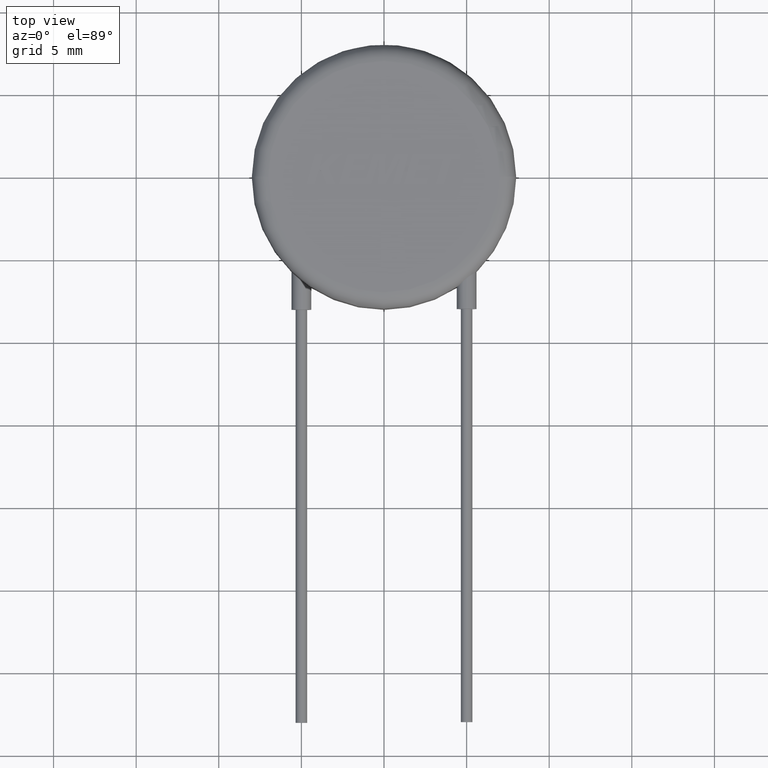
[diagram: clean part render]
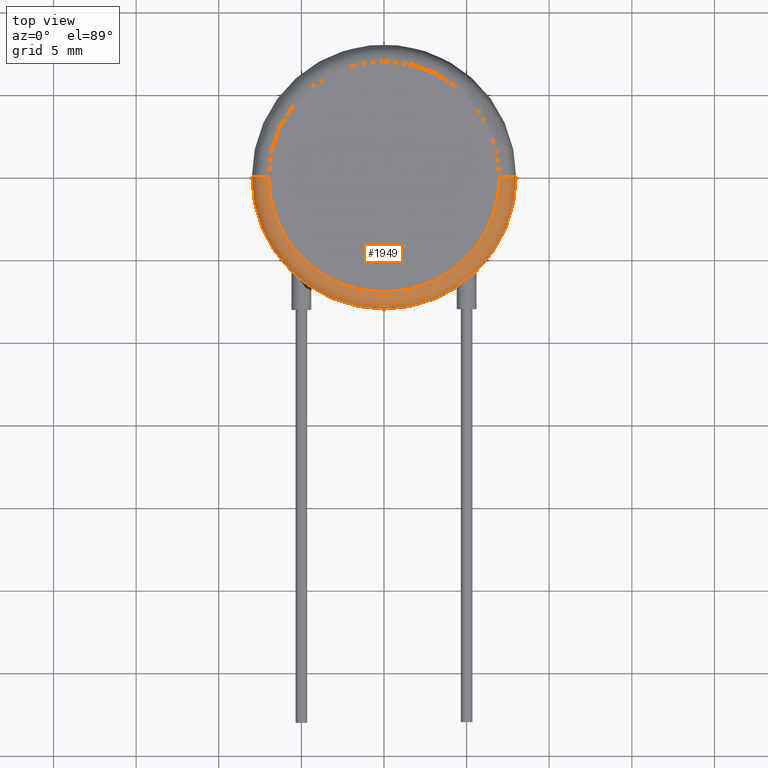
[diagram: same view with one face highlighted and labeled with its STEP entity id]
A machine part, top view. The second image highlights one B-rep face of the part: STEP entity #1949.
In plain terms, the highlighted toroidal blend (fillet) surface has major radius 7 mm and minor (blend) radius 1 mm.
Its self-contained STEP definition (entity closure, byte-faithful):
#33 = CARTESIAN_POINT ( 'NONE',  ( 0.000000000000000000, 0.000000000000000000, 5.000000000000000000 ) ) ;
#43 = CARTESIAN_POINT ( 'NONE',  ( 5.565685424949238680, -5.746576872409139725, 4.000000000000000000 ) ) ;
#53 = DIRECTION ( 'NONE',  ( 1.000000000000000000, 0.000000000000000000, 0.000000000000000000 ) ) ;
#117 = CARTESIAN_POINT ( 'NONE',  ( 4.495482335405950103, -6.608830326433365876, 4.131210232143875061 ) ) ;
#190 = CARTESIAN_POINT ( 'NONE',  ( -7.000000000000000000, 8.572527594031473190E-16, 4.000000000000000000 ) ) ;
#207 = VERTEX_POINT ( 'NONE', #3385 ) ;
#216 = CARTESIAN_POINT ( 'NONE',  ( 5.565685424949238680, -5.746576872409139725, 4.000000000000000000 ) ) ;
#335 = VERTEX_POINT ( 'NONE', #2404 ) ;
#348 = CARTESIAN_POINT ( 'NONE',  ( 5.520776025644094531, -5.790072608167232460, 4.127022963150730916 ) ) ;
#359 = AXIS2_PLACEMENT_3D ( 'NONE', #1395, #2479, #53 ) ;
#385 = CARTESIAN_POINT ( 'NONE',  ( 4.882508047927266226, -6.233401362512418942, 4.399999999999936406 ) ) ;
#413 = TOROIDAL_SURFACE ( 'NONE', #2047, 7.000000000000000000, 1.000000000000000000 ) ;
#487 = DIRECTION ( 'NONE',  ( 1.000000000000000000, 0.000000000000000000, 0.000000000000000000 ) ) ;
#574 = AXIS2_PLACEMENT_3D ( 'NONE', #33, #2461, #487 ) ;
#611 = ORIENTED_EDGE ( 'NONE', *, *, #1701, .T. ) ;
#623 = CARTESIAN_POINT ( 'NONE',  ( 4.999999999999650058, -6.137687833857293107, 4.400000000000003020 ) ) ;
#707 = EDGE_CURVE ( 'NONE', #2383, #1490, #1790, .T. ) ;
#736 = DIRECTION ( 'NONE',  ( -1.000000000000000000, 1.224646799147352468E-16, 0.000000000000000000 ) ) ;
#759 = VERTEX_POINT ( 'NONE', #812 ) ;
#812 = CARTESIAN_POINT ( 'NONE',  ( 8.000000000000000000, 9.797174393178825657E-16, 4.000000000000000000 ) ) ;
#835 = AXIS2_PLACEMENT_3D ( 'NONE', #190, #3148, #736 ) ;
#888 = EDGE_CURVE ( 'NONE', #1833, #207, #1728, .T. ) ;
#914 = CARTESIAN_POINT ( 'NONE',  ( 4.459343305269499069, -6.641924536197906903, 4.070791939457418351 ) ) ;
#944 = CIRCLE ( 'NONE', #835, 1.000000000000000000 ) ;
#1063 = ORIENTED_EDGE ( 'NONE', *, *, #3062, .F. ) ;
#1114 = CARTESIAN_POINT ( 'NONE',  ( 5.433924960415740912, -5.838726111812416519, 4.232753071992731542 ) ) ;
#1229 = CARTESIAN_POINT ( 'NONE',  ( 4.624303091938219090, -6.483076091975149780, 4.271476305045812438 ) ) ;
#1285 = CARTESIAN_POINT ( 'NONE',  ( 4.434314575050755103, -6.658592512648031203, 3.999999999999997335 ) ) ;
#1291 = EDGE_CURVE ( 'NONE', #335, #2582, #2098, .T. ) ;
#1316 = DIRECTION ( 'NONE',  ( -0.000000000000000000, -0.000000000000000000, -1.000000000000000000 ) ) ;
#1367 = CIRCLE ( 'NONE', #359, 8.000000000000000000 ) ;
#1395 = CARTESIAN_POINT ( 'NONE',  ( 0.000000000000000000, 0.000000000000000000, 4.000000000000000000 ) ) ;
#1414 = DIRECTION ( 'NONE',  ( 1.000000000000000000, 0.000000000000000000, 0.000000000000000000 ) ) ;
#1456 = CARTESIAN_POINT ( 'NONE',  ( 4.771882881000026444, -6.338223724800608139, 4.367199146513252472 ) ) ;
#1490 = VERTEX_POINT ( 'NONE', #1794 ) ;
#1505 = EDGE_CURVE ( 'NONE', #1490, #335, #944, .T. ) ;
#1597 = CARTESIAN_POINT ( 'NONE',  ( 7.000000000000000000, 0.000000000000000000, 5.000000000000000000 ) ) ;
#1678 = FACE_OUTER_BOUND ( 'NONE', #1757, .T. ) ;
#1701 = EDGE_CURVE ( 'NONE', #759, #2582, #3279, .T. ) ;
#1728 = B_SPLINE_CURVE_WITH_KNOTS ( 'NONE', 3,
 ( #43, #348, #1114, #3266, #3043, #623 ),
 .UNSPECIFIED., .F., .F.,
 ( 4, 2, 4 ),
 ( 2.196744402616520444E-07, 0.0004188166829209080525, 0.0008374136914015544580 ),
 .UNSPECIFIED. ) ;
#1757 = EDGE_LOOP ( 'NONE', ( #2267, #3281, #1063, #2220, #3147, #611, #2309 ) ) ;
#1790 = CIRCLE ( 'NONE', #2195, 8.000000000000000000 ) ;
#1794 = CARTESIAN_POINT ( 'NONE',  ( -8.000000000000000000, 0.000000000000000000, 4.000000000000000000 ) ) ;
#1833 = VERTEX_POINT ( 'NONE', #216 ) ;
#1949 = ADVANCED_FACE ( 'NONE', ( #1678 ), #413, .T. ) ;
#2010 = CARTESIAN_POINT ( 'NONE',  ( 4.434314575050755103, -6.658592512648031203, 3.999999999999997335 ) ) ;
#2026 = CARTESIAN_POINT ( 'NONE',  ( 0.000000000000000000, 0.000000000000000000, 4.000000000000000000 ) ) ;
#2041 = CARTESIAN_POINT ( 'NONE',  ( 7.000000000000000000, 0.000000000000000000, 4.000000000000000000 ) ) ;
#2047 = AXIS2_PLACEMENT_3D ( 'NONE', #3341, #3075, #1414 ) ;
#2098 = CIRCLE ( 'NONE', #574, 7.000000000000000000 ) ;
#2185 = EDGE_CURVE ( 'NONE', #759, #1833, #1367, .T. ) ;
#2195 = AXIS2_PLACEMENT_3D ( 'NONE', #2026, #1316, #2402 ) ;
#2220 = ORIENTED_EDGE ( 'NONE', *, *, #888, .F. ) ;
#2267 = ORIENTED_EDGE ( 'NONE', *, *, #1505, .F. ) ;
#2309 = ORIENTED_EDGE ( 'NONE', *, *, #1291, .F. ) ;
#2383 = VERTEX_POINT ( 'NONE', #1285 ) ;
#2402 = DIRECTION ( 'NONE',  ( 1.000000000000000000, 0.000000000000000000, 0.000000000000000000 ) ) ;
#2404 = CARTESIAN_POINT ( 'NONE',  ( -7.000000000000000000, 9.184850993605147944E-16, 5.000000000000000000 ) ) ;
#2461 = DIRECTION ( 'NONE',  ( 0.000000000000000000, 0.000000000000000000, 1.000000000000000000 ) ) ;
#2479 = DIRECTION ( 'NONE',  ( -0.000000000000000000, -0.000000000000000000, -1.000000000000000000 ) ) ;
#2547 = CARTESIAN_POINT ( 'NONE',  ( 4.578262181044505219, -6.529120081616559546, 4.231712292883692328 ) ) ;
#2580 = B_SPLINE_CURVE_WITH_KNOTS ( 'NONE', 3,
 ( #3310, #385, #1456, #1229, #2547, #117, #914, #2010 ),
 .UNSPECIFIED., .F., .F.,
 ( 4, 2, 2, 4 ),
 ( 0.0008374136914015544580, 0.001290666578392065571, 0.001517293021887322103, 0.001743919465382578419 ),
 .UNSPECIFIED. ) ;
#2582 = VERTEX_POINT ( 'NONE', #1597 ) ;
#2629 = DIRECTION ( 'NONE',  ( 0.000000000000000000, 0.000000000000000000, -1.000000000000000000 ) ) ;
#2859 = DIRECTION ( 'NONE',  ( 0.000000000000000000, -1.000000000000000000, 0.000000000000000000 ) ) ;
#3043 = CARTESIAN_POINT ( 'NONE',  ( 5.108508475223286105, -6.049292595975440889, 4.400000000000066080 ) ) ;
#3062 = EDGE_CURVE ( 'NONE', #207, #2383, #2580, .T. ) ;
#3075 = DIRECTION ( 'NONE',  ( 0.000000000000000000, 0.000000000000000000, 1.000000000000000000 ) ) ;
#3147 = ORIENTED_EDGE ( 'NONE', *, *, #2185, .F. ) ;
#3148 = DIRECTION ( 'NONE',  ( 1.224646799147353207E-16, 1.000000000000000000, -0.000000000000000000 ) ) ;
#3266 = CARTESIAN_POINT ( 'NONE',  ( 5.225440979353766835, -5.968571962709455114, 4.369861787996844882 ) ) ;
#3279 = CIRCLE ( 'NONE', #3391, 1.000000000000000000 ) ;
#3281 = ORIENTED_EDGE ( 'NONE', *, *, #707, .F. ) ;
#3310 = CARTESIAN_POINT ( 'NONE',  ( 4.999999999999650058, -6.137687833857293107, 4.400000000000003020 ) ) ;
#3341 = CARTESIAN_POINT ( 'NONE',  ( 0.000000000000000000, 0.000000000000000000, 4.000000000000000000 ) ) ;
#3385 = CARTESIAN_POINT ( 'NONE',  ( 4.999999999999650058, -6.137687833857293107, 4.400000000000003020 ) ) ;
#3391 = AXIS2_PLACEMENT_3D ( 'NONE', #2041, #2859, #2629 ) ;